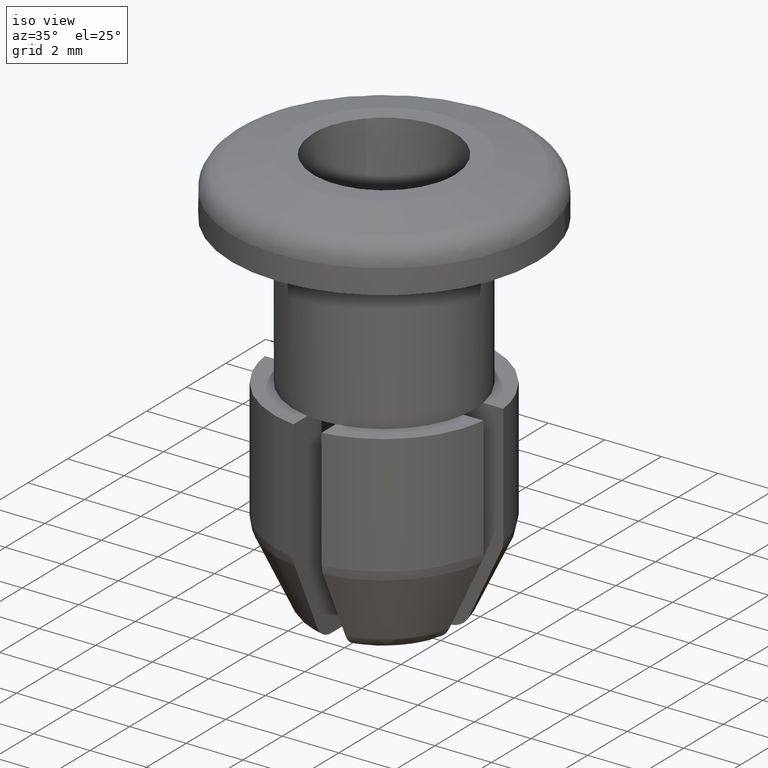
[diagram: clean part render]
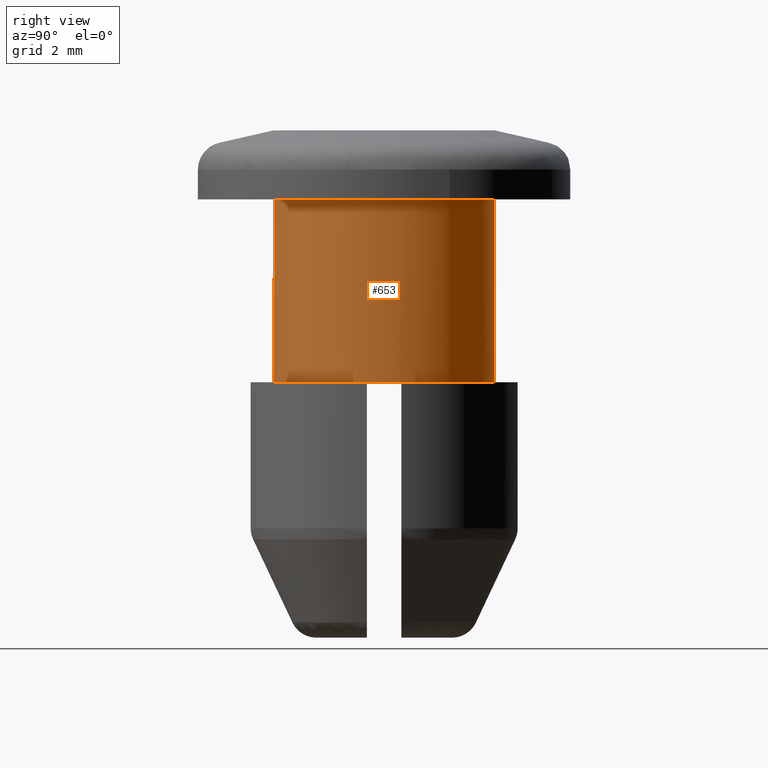
[diagram: tour spotlight — one face highlighted and labeled with its STEP entity id]
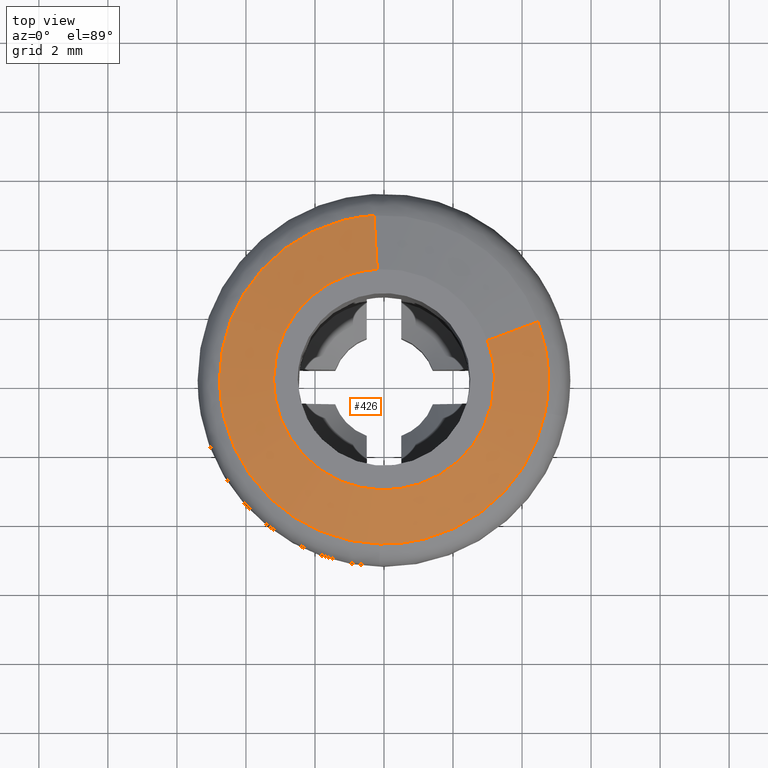
[diagram: tour spotlight — one face highlighted and labeled with its STEP entity id]
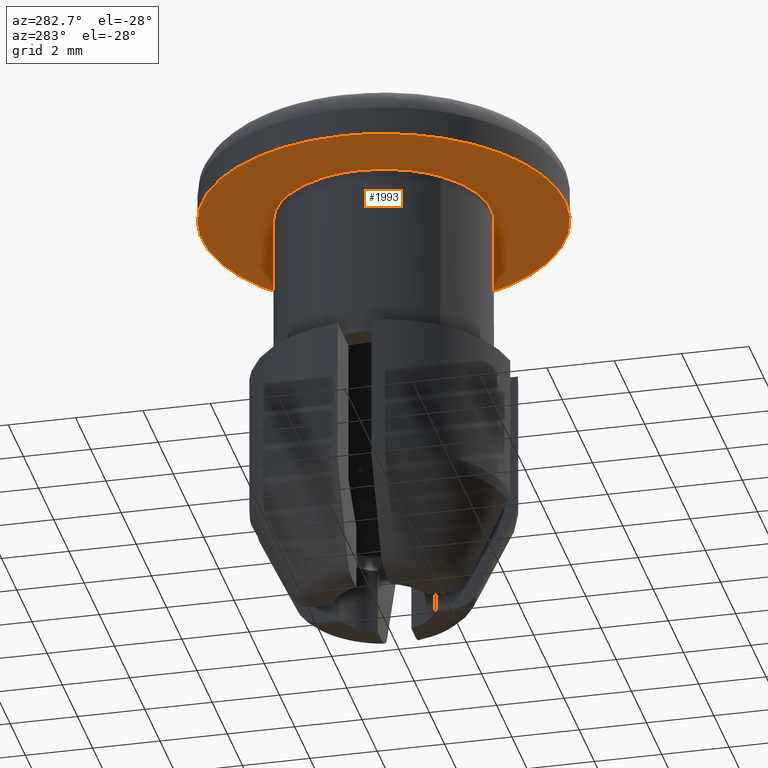
[diagram: tour spotlight — one face highlighted and labeled with its STEP entity id]
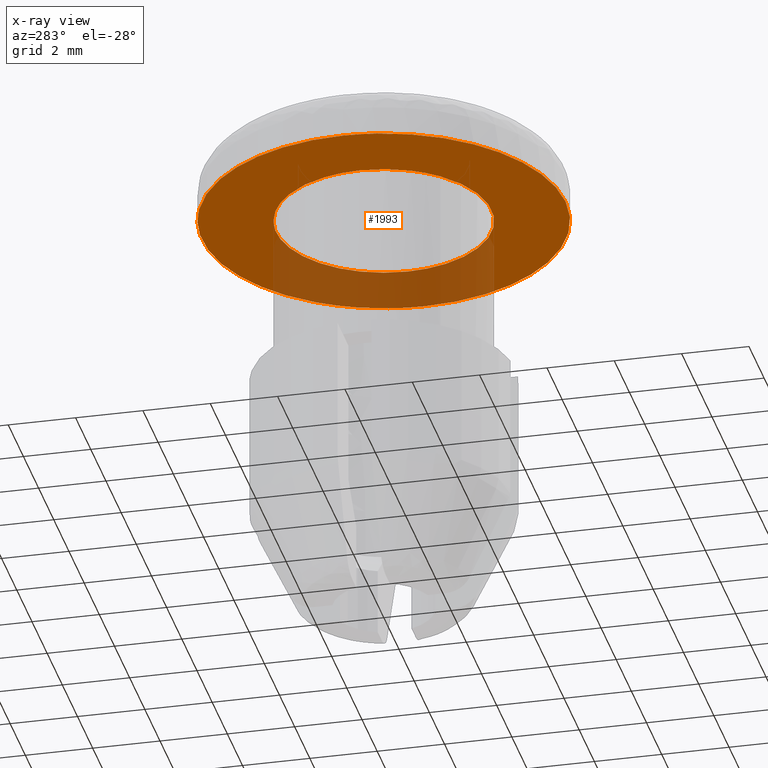
[diagram: x-ray of the same camera — body ghosted, this tour face saturated]
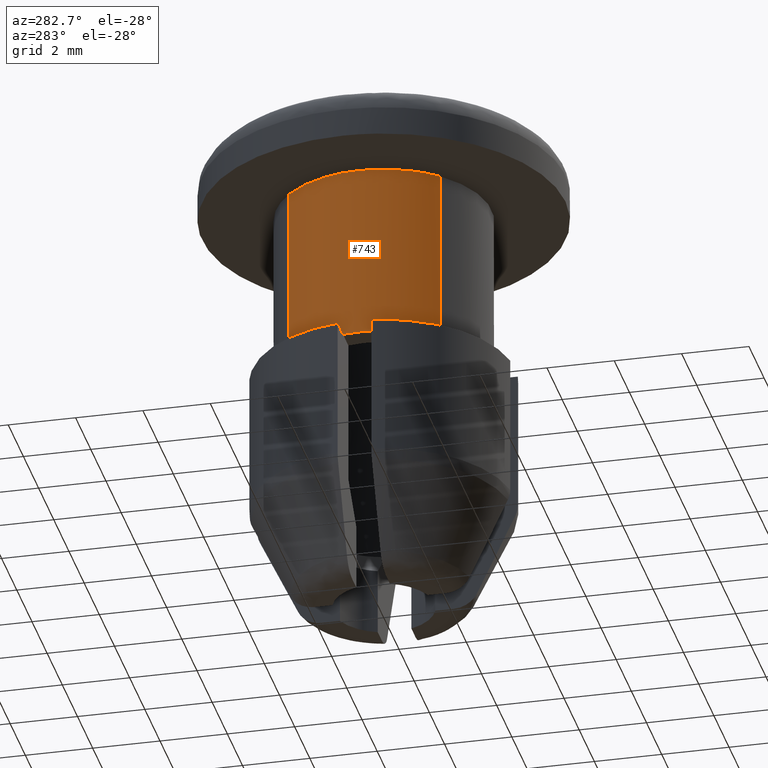
[diagram: tour spotlight — one face highlighted and labeled with its STEP entity id]
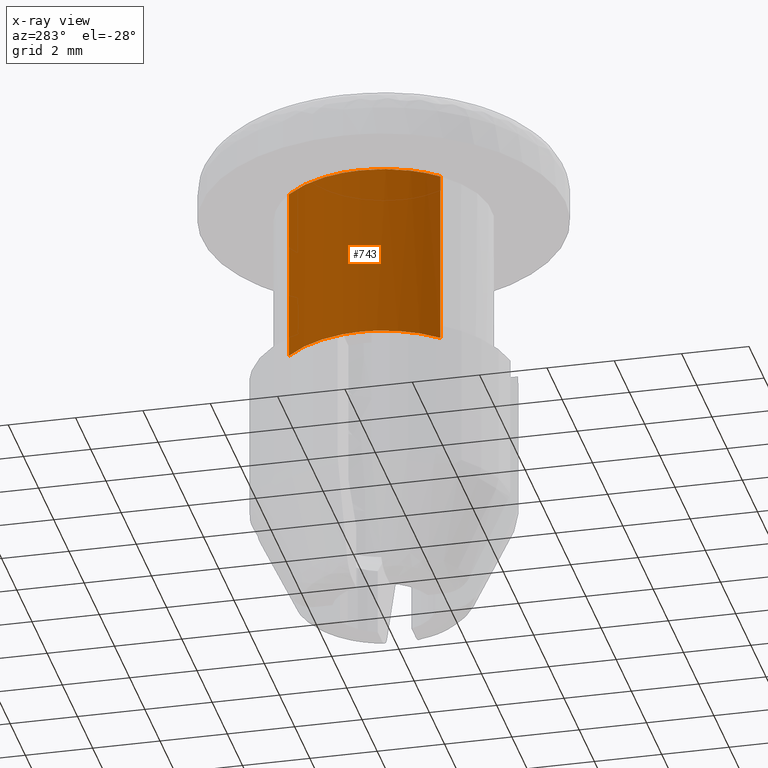
[diagram: x-ray of the same camera — body ghosted, this tour face saturated]
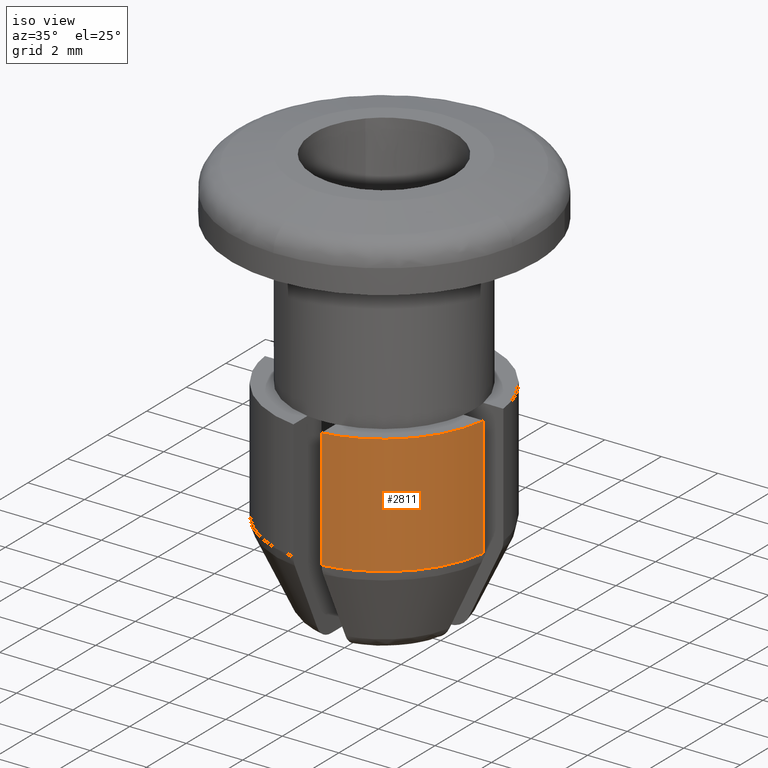
[diagram: tour spotlight — one face highlighted and labeled with its STEP entity id]
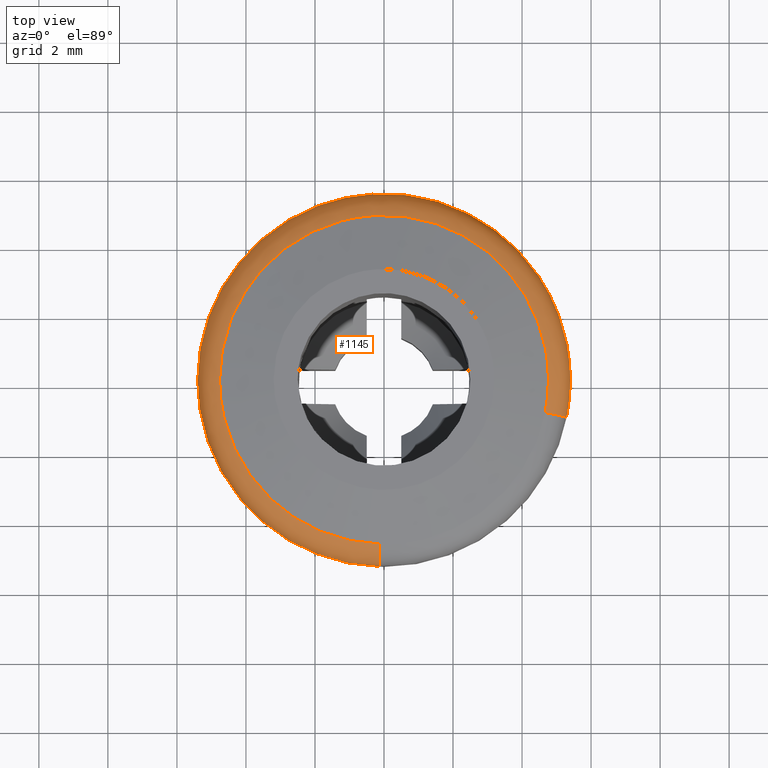
[diagram: tour spotlight — one face highlighted and labeled with its STEP entity id]
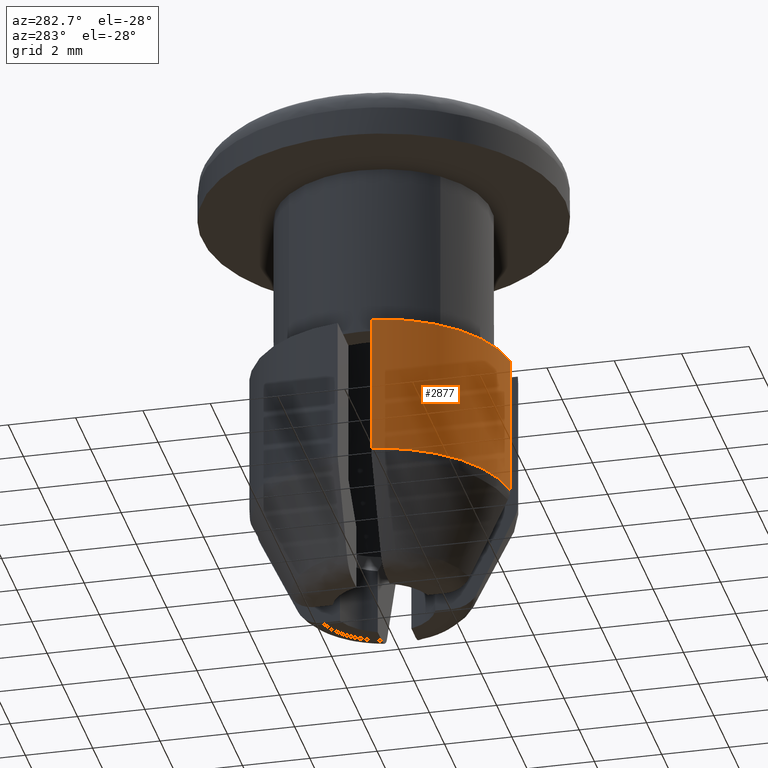
[diagram: tour spotlight — one face highlighted and labeled with its STEP entity id]
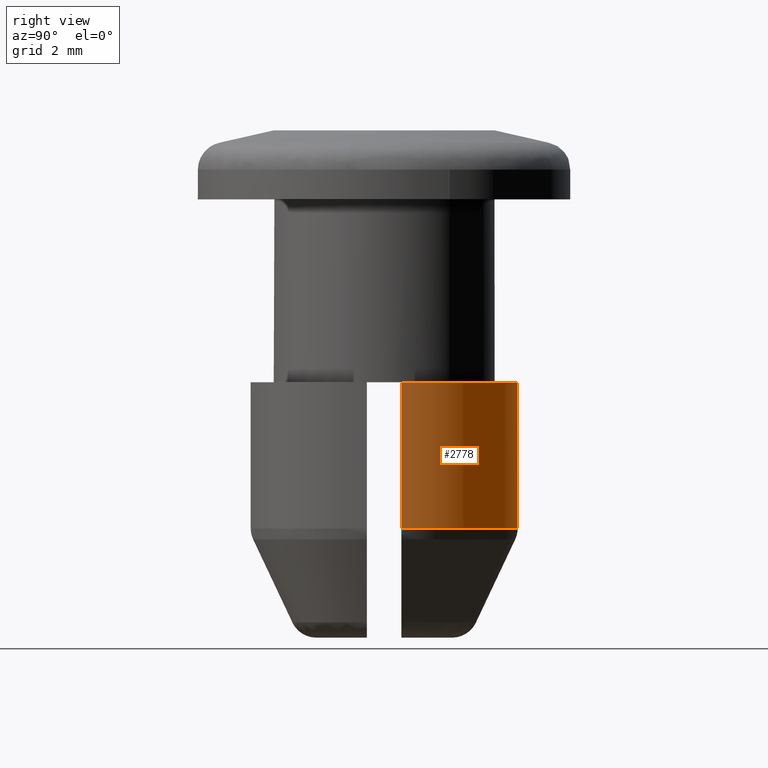
[diagram: tour spotlight — one face highlighted and labeled with its STEP entity id]
A machine part: a face-by-face anatomy tour. The part has 56 B-rep faces; the first image is the clean iso view, then the 8 largest visible faces are spotlighted one at a time (largest first), each with its STEP entity span.

Face 1 — right view, entity #653. In plain terms, the highlighted face is a freeform B-spline surface patch.
Definition (entity closure, byte-faithful):
#476=CARTESIAN_POINT('',(-2.321609333131511,-2.202301093019901,-7.432499999999858));
#477=CARTESIAN_POINT('',(-0.119308240111611,-4.523910426151413,-7.432499999999860));
#478=CARTESIAN_POINT('',(2.202301093019901,-2.321609333131511,-7.432499999999858));
#479=CARTESIAN_POINT('',(4.523910426151413,-0.119308240111611,-7.432499999999860));
#480=CARTESIAN_POINT('',(2.321609333131511,2.202301093019901,-7.432499999999858));
#481=CARTESIAN_POINT('',(0.119308240111611,4.523910426151413,-7.432499999999860));
#482=CARTESIAN_POINT('',(-2.202301093019901,2.321609333131511,-7.432499999999858));
#483=CARTESIAN_POINT('',(-2.321609333131511,-2.202301093019901,-1.864187500000003));
#484=CARTESIAN_POINT('',(-0.119308240111611,-4.523910426151413,-1.864187500000004));
#485=CARTESIAN_POINT('',(2.202301093019901,-2.321609333131511,-1.864187500000003));
#486=CARTESIAN_POINT('',(4.523910426151413,-0.119308240111611,-1.864187500000004));
#487=CARTESIAN_POINT('',(2.321609333131511,2.202301093019901,-1.864187500000003));
#488=CARTESIAN_POINT('',(0.119308240111611,4.523910426151413,-1.864187500000004));
#489=CARTESIAN_POINT('',(-2.202301093019901,2.321609333131511,-1.864187500000003));
#497=(BOUNDED_SURFACE()B_SPLINE_SURFACE(2,1,((#476,#483),(#477,#484),(#478,#485),(#479,#486),(#480,#487),(#481,#488),(#482,#489)),.UNSPECIFIED.,.F.,.F.,.U.)B_SPLINE_SURFACE_WITH_KNOTS((3,2,2,3),(2,2),(0.0,5.301933598375614,10.603867196751230,15.905800795126840),(0.0,5.568312499999855),.UNSPECIFIED.)GEOMETRIC_REPRESENTATION_ITEM()RATIONAL_B_SPLINE_SURFACE(((1.0,1.0),(0.707106781186548,0.707106781186548),(1.0,1.0),(0.707106781186548,0.707106781186548),(1.0,1.0),(0.707106781186548,0.707106781186548),(1.0,1.0)))REPRESENTATION_ITEM('')SURFACE());
#498=CARTESIAN_POINT('',(-2.321609420572284,-2.202301000842074,-2.0));
#499=VERTEX_POINT('',#498);
#500=CARTESIAN_POINT('',(3.200000000000000,0.0,-2.0));
#501=VERTEX_POINT('',#500);
#502=CARTESIAN_POINT('',(-2.321609420572284,-2.202301000842075,-1.999999999999999));
#503=CARTESIAN_POINT('',(-1.375182639998238,-3.200000000000000,-2.000000000000000));
#504=CARTESIAN_POINT('',(-1.972152E-031,-3.200000000000000,-2.0));
#505=CARTESIAN_POINT('',(3.200000000000000,-3.200000000000000,-2.000000000000000));
#506=CARTESIAN_POINT('',(3.200000000000000,0.0,-2.0));
#514=(BOUNDED_CURVE()B_SPLINE_CURVE(2,(#502,#503,#504,#505,#506),.UNSPECIFIED.,.F.,.U.)B_SPLINE_CURVE_WITH_KNOTS((3,2,3),(0.121021329653350,0.250000000000000,0.500000000000000),.UNSPECIFIED.)CURVE()GEOMETRIC_REPRESENTATION_ITEM()RATIONAL_B_SPLINE_CURVE((0.853701756873830,0.848892088335562,1.0,0.707106781186548,1.0))REPRESENTATION_ITEM(''));
#515=EDGE_CURVE('',#499,#501,#514,.T.);
#516=ORIENTED_EDGE('',*,*,#515,.F.);
#517=CARTESIAN_POINT('',(-2.321609362806782,-2.202301061736991,-7.299999999999860));
#518=VERTEX_POINT('',#517);
#519=CARTESIAN_POINT('',(-2.321609362806782,-2.202301061736991,-7.299999999999860));
#520=CARTESIAN_POINT('',(-2.321609420572284,-2.202301000842074,-2.0));
#521=QUASI_UNIFORM_CURVE('',1,(#519,#520),.UNSPECIFIED.,.F.,.U.);
#522=EDGE_CURVE('',#518,#499,#521,.T.);
#523=ORIENTED_EDGE('',*,*,#522,.F.);
#524=CARTESIAN_POINT('',(-0.500000000000000,-3.160696125855820,-7.299999999999860));
#525=VERTEX_POINT('',#524);
#526=CARTESIAN_POINT('',(-2.321609362806783,-2.202301061736991,-7.299999999999860));
#527=CARTESIAN_POINT('',(-1.573570166425779,-2.990864841278426,-7.299999999999861));
#528=CARTESIAN_POINT('',(-0.500000000000000,-3.160696125855822,-7.299999999999860));
#536=(BOUNDED_CURVE()B_SPLINE_CURVE(2,(#526,#527,#528),.UNSPECIFIED.,.F.,.U.)B_SPLINE_CURVE_WITH_KNOTS((3,3),(0.479718158413587,1.0),.UNSPECIFIED.)CURVE()GEOMETRIC_REPRESENTATION_ITEM()RATIONAL_B_SPLINE_CURVE((0.904610815485653,0.900577888452465,1.0))REPRESENTATION_ITEM(''));
#537=EDGE_CURVE('',#518,#525,#536,.T.);
#538=ORIENTED_EDGE('',*,*,#537,.T.);
#539=CARTESIAN_POINT('',(0.500000000000007,-3.160696125855820,-7.299999999999860));
#540=VERTEX_POINT('',#539);
#541=CARTESIAN_POINT('',(-0.500000000000000,-3.160696125855822,-7.299999999999860));
#542=CARTESIAN_POINT('',(5.529431E-015,-3.239792625501864,-7.299999999999860));
#543=CARTESIAN_POINT('',(0.500000000000008,-3.160696125855821,-7.299999999999860));
#551=(BOUNDED_CURVE()B_SPLINE_CURVE(2,(#541,#542,#543),.UNSPECIFIED.,.F.,.U.)CURVE()GEOMETRIC_REPRESENTATION_ITEM()QUASI_UNIFORM_CURVE()RATIONAL_B_SPLINE_CURVE((1.0,0.987717539329944,1.0))REPRESENTATION_ITEM(''));
#552=EDGE_CURVE('',#525,#540,#551,.T.);
#553=ORIENTED_EDGE('',*,*,#552,.T.);
#554=CARTESIAN_POINT('',(3.160696125855820,-0.500000000000000,-7.299999999999860));
#555=VERTEX_POINT('',#554);
#556=CARTESIAN_POINT('',(0.500000000000008,-3.160696125855821,-7.299999999999860));
#557=CARTESIAN_POINT('',(2.797282169277578,-2.797282169277573,-7.299999999999860));
#558=CARTESIAN_POINT('',(3.160696125855822,-0.500000000000000,-7.299999999999860));
#566=(BOUNDED_CURVE()B_SPLINE_CURVE(2,(#556,#557,#558),.UNSPECIFIED.,.F.,.U.)CURVE()GEOMETRIC_REPRESENTATION_ITEM()QUASI_UNIFORM_CURVE()RATIONAL_B_SPLINE_CURVE((1.0,0.808907204517493,1.0))REPRESENTATION_ITEM(''));
#567=EDGE_CURVE('',#540,#555,#566,.T.);
#568=ORIENTED_EDGE('',*,*,#567,.T.);
#569=CARTESIAN_POINT('',(3.160696125855820,0.500000000000007,-7.299999999999860));
#570=VERTEX_POINT('',#569);
#571=CARTESIAN_POINT('',(3.160696125855822,-0.500000000000000,-7.299999999999860));
#572=CARTESIAN_POINT('',(3.239792625501864,3.577867E-015,-7.299999999999860));
#573=CARTESIAN_POINT('',(3.160696125855821,0.500000000000006,-7.299999999999860));
#581=(BOUNDED_CURVE()B_SPLINE_CURVE(2,(#571,#572,#573),.UNSPECIFIED.,.F.,.U.)CURVE()GEOMETRIC_REPRESENTATION_ITEM()QUASI_UNIFORM_CURVE()RATIONAL_B_SPLINE_CURVE((1.0,0.987717539329944,1.0))REPRESENTATION_ITEM(''));
#582=EDGE_CURVE('',#555,#570,#581,.T.);
#583=ORIENTED_EDGE('',*,*,#582,.T.);
#584=CARTESIAN_POINT('',(0.500000000000007,3.160696125855820,-7.299999999999860));
#585=VERTEX_POINT('',#584);
#586=CARTESIAN_POINT('',(3.160696125855821,0.500000000000006,-7.299999999999860));
#587=CARTESIAN_POINT('',(2.797282169277575,2.797282169277573,-7.299999999999860));
#588=CARTESIAN_POINT('',(0.500000000000009,3.160696125855821,-7.299999999999860));
#596=(BOUNDED_CURVE()B_SPLINE_CURVE(2,(#586,#587,#588),.UNSPECIFIED.,.F.,.U.)CURVE()GEOMETRIC_REPRESENTATION_ITEM()QUASI_UNIFORM_CURVE()RATIONAL_B_SPLINE_CURVE((1.0,0.808907204517494,1.0))REPRESENTATION_ITEM(''));
#597=EDGE_CURVE('',#570,#585,#596,.T.);
#598=ORIENTED_EDGE('',*,*,#597,.T.);
#599=CARTESIAN_POINT('',(-0.500000000000000,3.160696125855820,-7.299999999999860));
#600=VERTEX_POINT('',#599);
#601=CARTESIAN_POINT('',(0.500000000000007,3.160696125855821,-7.299999999999860));
#602=CARTESIAN_POINT('',(4.011548E-015,3.239792625501864,-7.299999999999860));
#603=CARTESIAN_POINT('',(-0.500000000000000,3.160696125855822,-7.299999999999860));
#611=(BOUNDED_CURVE()B_SPLINE_CURVE(2,(#601,#602,#603),.UNSPECIFIED.,.F.,.U.)CURVE()GEOMETRIC_REPRESENTATION_ITEM()QUASI_UNIFORM_CURVE()RATIONAL_B_SPLINE_CURVE((1.0,0.987717539329944,1.0))REPRESENTATION_ITEM(''));
#612=EDGE_CURVE('',#585,#600,#611,.T.);
#613=ORIENTED_EDGE('',*,*,#612,.T.);
#614=CARTESIAN_POINT('',(-2.202301061736991,2.321609362806782,-7.299999999999860));
#615=VERTEX_POINT('',#614);
#616=CARTESIAN_POINT('',(-0.499999999999999,3.160696125855822,-7.299999999999860));
#617=CARTESIAN_POINT('',(-1.481422187070637,3.005442006511322,-7.299999999999861));
#618=CARTESIAN_POINT('',(-2.202301061736991,2.321609362806783,-7.299999999999860));
#626=(BOUNDED_CURVE()B_SPLINE_CURVE(2,(#616,#617,#618),.UNSPECIFIED.,.F.,.U.)B_SPLINE_CURVE_WITH_KNOTS((3,3),(0.0,0.479718158413588),.UNSPECIFIED.)CURVE()GEOMETRIC_REPRESENTATION_ITEM()RATIONAL_B_SPLINE_CURVE((1.0,0.908329316065027,0.904610815485653))REPRESENTATION_ITEM(''));
#627=EDGE_CURVE('',#600,#615,#626,.T.);
#628=ORIENTED_EDGE('',*,*,#627,.T.);
#629=CARTESIAN_POINT('',(-2.202301051181251,2.321609372820059,-2.0));
#630=VERTEX_POINT('',#629);
#631=CARTESIAN_POINT('',(-2.202301061736991,2.321609362806782,-7.299999999999860));
#632=CARTESIAN_POINT('',(-2.202301051181251,2.321609372820059,-2.0));
#633=QUASI_UNIFORM_CURVE('',1,(#631,#632),.UNSPECIFIED.,.F.,.U.);
#634=EDGE_CURVE('',#615,#630,#633,.T.);
#635=ORIENTED_EDGE('',*,*,#634,.T.);
#636=CARTESIAN_POINT('',(3.200000000000000,0.0,-2.0));
#637=CARTESIAN_POINT('',(3.200000000000000,3.200000000000000,-2.000000000000000));
#638=CARTESIAN_POINT('',(-1.972152E-031,3.200000000000000,-2.0));
#639=CARTESIAN_POINT('',(-1.276324111939398,3.199999999999999,-2.000000000000000));
#640=CARTESIAN_POINT('',(-2.202301051181251,2.321609372820059,-1.999999999999999));
#648=(BOUNDED_CURVE()B_SPLINE_CURVE(2,(#636,#637,#638,#639,#640),.UNSPECIFIED.,.F.,.U.)B_SPLINE_CURVE_WITH_KNOTS((3,2,3),(0.500000000000000,0.750000000000000,0.871021336197874),.UNSPECIFIED.)CURVE()GEOMETRIC_REPRESENTATION_ITEM()RATIONAL_B_SPLINE_CURVE((1.0,0.707106781186548,1.0,0.858214685183599,0.853701756385734))REPRESENTATION_ITEM(''));
#649=EDGE_CURVE('',#501,#630,#648,.T.);
#650=ORIENTED_EDGE('',*,*,#649,.F.);
#651=EDGE_LOOP('',(#516,#523,#538,#553,#568,#583,#598,#613,#628,#635,#650));
#652=FACE_OUTER_BOUND('',#651,.T.);
#653=ADVANCED_FACE('',(#652),#497,.T.);

Face 2 — top view, entity #426. In plain terms, the highlighted face is a freeform B-spline surface patch.
Definition (entity closure, byte-faithful):
#260=CARTESIAN_POINT('',(2.959032740801472,1.111420429586882,0.008905034525747));
#261=CARTESIAN_POINT('',(3.125991545656128,0.666911262058224,0.008905034525747));
#262=CARTESIAN_POINT('',(3.154979230988479,0.192966796287614,0.008905034525747));
#263=CARTESIAN_POINT('',(3.347946027276093,-2.962012434700864,0.008905034525747));
#264=CARTESIAN_POINT('',(0.192966796287614,-3.154979230988479,0.008905034525747));
#265=CARTESIAN_POINT('',(-2.962012434700864,-3.347946027276093,0.008905034525747));
#266=CARTESIAN_POINT('',(-3.154979230988479,-0.192966796287614,0.008905034525747));
#267=CARTESIAN_POINT('',(-3.347946027276093,2.962012434700864,0.008905034525747));
#268=CARTESIAN_POINT('',(-0.192966796287614,3.154979230988479,0.008905034525747));
#269=CARTESIAN_POINT('',(4.498270282504490,1.689562072376702,-0.365329041418765));
#270=CARTESIAN_POINT('',(4.752078163682831,1.013826940749401,-0.365329041418765));
#271=CARTESIAN_POINT('',(4.796144740470282,0.293344778948125,-0.365329041418765));
#272=CARTESIAN_POINT('',(5.089489519418407,-4.502799961522157,-0.365329041418765));
#273=CARTESIAN_POINT('',(0.293344778948125,-4.796144740470282,-0.365329041418765));
#274=CARTESIAN_POINT('',(-4.502799961522157,-5.089489519418407,-0.365329041418765));
#275=CARTESIAN_POINT('',(-4.796144740470282,-0.293344778948125,-0.365329041418765));
#276=CARTESIAN_POINT('',(-5.089489519418407,4.502799961522157,-0.365329041418765));
#277=CARTESIAN_POINT('',(-0.293344778948125,4.796144740470282,-0.365329041418765));
#285=(BOUNDED_SURFACE()B_SPLINE_SURFACE(2,1,((#260,#269),(#261,#270),(#262,#271),(#263,#272),(#264,#273),(#265,#274),(#266,#275),(#267,#276),(#268,#277)),.UNSPECIFIED.,.F.,.F.,.U.)B_SPLINE_SURFACE_WITH_KNOTS((3,2,2,2,3),(2,2),(0.0,1.592272468005885,9.553634808035312,17.514997148064740,25.476359488094172),(0.0,1.0),.UNSPECIFIED.)GEOMETRIC_REPRESENTATION_ITEM()RATIONAL_B_SPLINE_SURFACE(((0.906274169979695,0.906274169979695),(0.941421356237309,0.941421356237309),(1.0,1.0),(0.707106781186548,0.707106781186548),(1.0,1.0),(0.707106781186548,0.707106781186548),(1.0,1.0),(0.707106781186548,0.707106781186548),(1.0,1.0)))REPRESENTATION_ITEM('')SURFACE());
#286=CARTESIAN_POINT('',(4.460727903095101,1.675461056570736,-0.356201380946435));
#287=VERTEX_POINT('',#286);
#288=CARTESIAN_POINT('',(4.765004006035630,0.0,-0.356201380946417));
#289=VERTEX_POINT('',#288);
#290=CARTESIAN_POINT('',(4.460727903095101,1.675461056570736,-0.356201380946435));
#291=CARTESIAN_POINT('',(4.765004006035630,0.865359922134585,-0.356201380946417));
#292=CARTESIAN_POINT('',(4.765004006035630,0.0,-0.356201380946417));
#300=(BOUNDED_CURVE()B_SPLINE_CURVE(2,(#290,#291,#292),.UNSPECIFIED.,.F.,.U.)B_SPLINE_CURVE_WITH_KNOTS((3,3),(0.440284170898857,0.500000000000000),.UNSPECIFIED.)CURVE()GEOMETRIC_REPRESENTATION_ITEM()RATIONAL_B_SPLINE_CURVE((0.893499554635702,0.930038554401809,1.0))REPRESENTATION_ITEM(''));
#301=EDGE_CURVE('',#287,#289,#300,.T.);
#302=ORIENTED_EDGE('',*,*,#301,.F.);
#303=CARTESIAN_POINT('',(2.995659452077921,1.125177518080948,-6.613125E-013));
#304=VERTEX_POINT('',#303);
#305=CARTESIAN_POINT('',(2.995659452077921,1.125177518080948,-6.613125E-013));
#306=CARTESIAN_POINT('',(4.460727903095101,1.675461056570736,-0.356201380946435));
#307=QUASI_UNIFORM_CURVE('',1,(#305,#306),.UNSPECIFIED.,.F.,.U.);
#308=EDGE_CURVE('',#304,#287,#307,.T.);
#309=ORIENTED_EDGE('',*,*,#308,.F.);
#310=CARTESIAN_POINT('',(3.200000000000000,0.0,0.0));
#311=VERTEX_POINT('',#310);
#312=CARTESIAN_POINT('',(2.995659452077921,1.125177518080948,-6.613125E-013));
#313=CARTESIAN_POINT('',(3.200000000000000,0.581143635443312,0.0));
#314=CARTESIAN_POINT('',(3.200000000000000,0.0,0.0));
#322=(BOUNDED_CURVE()B_SPLINE_CURVE(2,(#312,#313,#314),.UNSPECIFIED.,.F.,.U.)B_SPLINE_CURVE_WITH_KNOTS((3,3),(0.440284170896073,0.500000000000000),.UNSPECIFIED.)CURVE()GEOMETRIC_REPRESENTATION_ITEM()RATIONAL_B_SPLINE_CURVE((0.893499554632295,0.930038554398547,1.0))REPRESENTATION_ITEM(''));
#323=EDGE_CURVE('',#304,#311,#322,.T.);
#324=ORIENTED_EDGE('',*,*,#323,.T.);
#325=CARTESIAN_POINT('',(-3.200000000000000,0.0,0.0));
#326=VERTEX_POINT('',#325);
#327=CARTESIAN_POINT('',(3.200000000000000,0.0,0.0));
#328=CARTESIAN_POINT('',(3.200000000000000,-3.200000000000000,0.0));
#329=CARTESIAN_POINT('',(0.0,-3.200000000000000,0.0));
#330=CARTESIAN_POINT('',(-3.200000000000000,-3.200000000000000,0.0));
#331=CARTESIAN_POINT('',(-3.200000000000000,0.0,0.0));
#339=(BOUNDED_CURVE()B_SPLINE_CURVE(2,(#327,#328,#329,#330,#331),.UNSPECIFIED.,.F.,.U.)B_SPLINE_CURVE_WITH_KNOTS((3,2,3),(0.500000000000000,0.750000000000000,1.0),.UNSPECIFIED.)CURVE()GEOMETRIC_REPRESENTATION_ITEM()RATIONAL_B_SPLINE_CURVE((1.0,0.707106781186548,1.0,0.707106781186548,1.0))REPRESENTATION_ITEM(''));
#340=EDGE_CURVE('',#311,#326,#339,.T.);
#341=ORIENTED_EDGE('',*,*,#340,.T.);
#342=CARTESIAN_POINT('',(-0.195355326531273,3.194031354951814,-6.923082E-013));
#343=VERTEX_POINT('',#342);
#344=CARTESIAN_POINT('',(-3.200000000000000,0.0,0.0));
#345=CARTESIAN_POINT('',(-3.199999999999999,3.010259414061313,0.0));
#346=CARTESIAN_POINT('',(-0.195355326531273,3.194031354951814,-6.923082E-013));
#354=(BOUNDED_CURVE()B_SPLINE_CURVE(2,(#344,#345,#346),.UNSPECIFIED.,.F.,.U.)B_SPLINE_CURVE_WITH_KNOTS((3,3),(0.0,0.239332962239857),.UNSPECIFIED.)CURVE()GEOMETRIC_REPRESENTATION_ITEM()RATIONAL_B_SPLINE_CURVE((1.0,0.719603993285640,0.976072041668676))REPRESENTATION_ITEM(''));
#355=EDGE_CURVE('',#326,#343,#354,.T.);
#356=ORIENTED_EDGE('',*,*,#355,.T.);
#357=CARTESIAN_POINT('',(-0.290896535476083,4.756116313046521,-0.356201380947459));
#358=VERTEX_POINT('',#357);
#359=CARTESIAN_POINT('',(-0.195355326531273,3.194031354951814,-6.923082E-013));
#360=CARTESIAN_POINT('',(-0.290896535476083,4.756116313046521,-0.356201380947459));
#361=QUASI_UNIFORM_CURVE('',1,(#359,#360),.UNSPECIFIED.,.F.,.U.);
#362=EDGE_CURVE('',#343,#358,#361,.T.);
#363=ORIENTED_EDGE('',*,*,#362,.T.);
#364=CARTESIAN_POINT('',(-4.765004006035630,0.0,-0.356201380946417));
#365=VERTEX_POINT('',#364);
#366=CARTESIAN_POINT('',(-4.765004006035630,0.0,-0.356201380946417));
#367=CARTESIAN_POINT('',(-4.765004006035629,4.482468177251783,-0.356201380946417));
#368=CARTESIAN_POINT('',(-0.290896535476083,4.756116313046521,-0.356201380947459));
#376=(BOUNDED_CURVE()B_SPLINE_CURVE(2,(#366,#367,#368),.UNSPECIFIED.,.F.,.U.)B_SPLINE_CURVE_WITH_KNOTS((3,3),(0.0,0.239332962239822),.UNSPECIFIED.)CURVE()GEOMETRIC_REPRESENTATION_ITEM()RATIONAL_B_SPLINE_CURVE((1.0,0.719603993285681,0.976072041668601))REPRESENTATION_ITEM(''));
#377=EDGE_CURVE('',#365,#358,#376,.T.);
#378=ORIENTED_EDGE('',*,*,#377,.F.);
#379=CARTESIAN_POINT('',(-0.122093203293687,-4.763439558820435,-0.356201381019195));
#380=VERTEX_POINT('',#379);
#381=CARTESIAN_POINT('',(-0.122093203293687,-4.763439558820435,-0.356201381019195));
#382=CARTESIAN_POINT('',(-4.765004006035630,-4.644435665237780,-0.356201380946417));
#383=CARTESIAN_POINT('',(-4.765004006035630,0.0,-0.356201380946417));
#391=(BOUNDED_CURVE()B_SPLINE_CURVE(2,(#381,#382,#383),.UNSPECIFIED.,.F.,.U.)B_SPLINE_CURVE_WITH_KNOTS((3,3),(0.754506356914855,1.0),.UNSPECIFIED.)CURVE()GEOMETRIC_REPRESENTATION_ITEM()RATIONAL_B_SPLINE_CURVE((0.989631280355637,0.712386306714204,1.0))REPRESENTATION_ITEM(''));
#392=EDGE_CURVE('',#380,#365,#391,.T.);
#393=ORIENTED_EDGE('',*,*,#392,.F.);
#394=CARTESIAN_POINT('',(4.669013250326508,-0.951618857308044,-0.356201381029874));
#395=VERTEX_POINT('',#394);
#396=CARTESIAN_POINT('',(4.669013250326508,-0.951618857308044,-0.356201381029874));
#397=CARTESIAN_POINT('',(3.891784952790702,-4.765004006035629,-0.356201380946417));
#398=CARTESIAN_POINT('',(0.0,-4.765004006035630,-0.356201380946417));
#399=CARTESIAN_POINT('',(-0.061056624727273,-4.765004006035631,-0.356201380946417));
#400=CARTESIAN_POINT('',(-0.122093203293687,-4.763439558820435,-0.356201381019195));
#408=(BOUNDED_CURVE()B_SPLINE_CURVE(2,(#396,#397,#398,#399,#400),.UNSPECIFIED.,.F.,.U.)B_SPLINE_CURVE_WITH_KNOTS((3,2,3),(0.534232961493298,0.750000000000000,0.754506356914855),.UNSPECIFIED.)CURVE()GEOMETRIC_REPRESENTATION_ITEM()RATIONAL_B_SPLINE_CURVE((0.930770871023416,0.747213190311703,1.0,0.994720474472343,0.989631280355636))REPRESENTATION_ITEM(''));
#409=EDGE_CURVE('',#395,#380,#408,.T.);
#410=ORIENTED_EDGE('',*,*,#409,.F.);
#411=CARTESIAN_POINT('',(4.765004006035630,0.0,-0.356201380946417));
#412=CARTESIAN_POINT('',(4.765004006035630,-0.480650770932359,-0.356201380946417));
#413=CARTESIAN_POINT('',(4.669013250326508,-0.951618857308044,-0.356201381029874));
#421=(BOUNDED_CURVE()B_SPLINE_CURVE(2,(#411,#412,#413),.UNSPECIFIED.,.F.,.U.)B_SPLINE_CURVE_WITH_KNOTS((3,3),(0.500000000000000,0.534232961493297),.UNSPECIFIED.)CURVE()GEOMETRIC_REPRESENTATION_ITEM()RATIONAL_B_SPLINE_CURVE((1.0,0.959893590874845,0.930770871023417))REPRESENTATION_ITEM(''));
#422=EDGE_CURVE('',#289,#395,#421,.T.);
#423=ORIENTED_EDGE('',*,*,#422,.F.);
#424=EDGE_LOOP('',(#302,#309,#324,#341,#356,#363,#378,#393,#410,#423));
#425=FACE_OUTER_BOUND('',#424,.T.);
#426=ADVANCED_FACE('',(#425),#285,.T.);

Face 3 — auxiliary view, entity #1993. An x-ray twin of the same camera follows (body ghosted, this face saturated) — the face is partly hidden behind the body. In plain terms, the highlighted face is a freeform B-spline surface patch.
Definition (entity closure, byte-faithful):
#70=CARTESIAN_POINT('',(5.055175638594127,1.898736227853585,-2.000000000000012));
#71=VERTEX_POINT('',#70);
#72=CARTESIAN_POINT('',(5.400000000000000,0.0,-2.0));
#73=VERTEX_POINT('',#72);
#74=CARTESIAN_POINT('',(5.055175638594127,1.898736227853585,-2.000000000000011));
#75=CARTESIAN_POINT('',(5.400000000000000,0.980678964642470,-2.000000000000000));
#76=CARTESIAN_POINT('',(5.400000000000000,0.0,-2.0));
#84=(BOUNDED_CURVE()B_SPLINE_CURVE(2,(#74,#75,#76),.UNSPECIFIED.,.F.,.U.)B_SPLINE_CURVE_WITH_KNOTS((3,3),(0.440284223007188,0.500000000000000),.UNSPECIFIED.)CURVE()GEOMETRIC_REPRESENTATION_ITEM()RATIONAL_B_SPLINE_CURVE((0.893499618403955,0.930038615450516,1.0))REPRESENTATION_ITEM(''));
#85=EDGE_CURVE('',#71,#73,#84,.T.);
#171=CARTESIAN_POINT('',(-0.329659433774561,5.389928075375053,-1.999999999999957));
#172=VERTEX_POINT('',#171);
#178=CARTESIAN_POINT('',(-5.400000000000000,0.0,-2.0));
#179=VERTEX_POINT('',#178);
#180=CARTESIAN_POINT('',(-5.400000000000000,0.0,-2.0));
#181=CARTESIAN_POINT('',(-5.400000000000000,5.079815291544232,-2.000000000000000));
#182=CARTESIAN_POINT('',(-0.329659433774561,5.389928075375053,-1.999999999999957));
#190=(BOUNDED_CURVE()B_SPLINE_CURVE(2,(#180,#181,#182),.UNSPECIFIED.,.F.,.U.)B_SPLINE_CURVE_WITH_KNOTS((3,3),(0.0,0.239333048027164),.UNSPECIFIED.)CURVE()GEOMETRIC_REPRESENTATION_ITEM()RATIONAL_B_SPLINE_CURVE((1.0,0.719603892779557,0.976072225527275))REPRESENTATION_ITEM(''));
#191=EDGE_CURVE('',#179,#172,#190,.T.);
#193=CARTESIAN_POINT('',(5.400000000000000,0.0,-2.0));
#194=CARTESIAN_POINT('',(5.400000000000000,-5.400000000000000,-2.000000000000000));
#195=CARTESIAN_POINT('',(0.0,-5.400000000000000,-2.0));
#196=CARTESIAN_POINT('',(-5.400000000000000,-5.400000000000000,-2.000000000000000));
#197=CARTESIAN_POINT('',(-5.400000000000000,0.0,-2.0));
#205=(BOUNDED_CURVE()B_SPLINE_CURVE(2,(#193,#194,#195,#196,#197),.UNSPECIFIED.,.F.,.U.)B_SPLINE_CURVE_WITH_KNOTS((3,2,3),(0.500000000000000,0.750000000000000,1.0),.UNSPECIFIED.)CURVE()GEOMETRIC_REPRESENTATION_ITEM()RATIONAL_B_SPLINE_CURVE((1.0,0.707106781186548,1.0,0.707106781186548,1.0))REPRESENTATION_ITEM(''));
#206=EDGE_CURVE('',#73,#179,#205,.T.);
#225=CARTESIAN_POINT('',(-0.329659433774561,5.389928075375053,-1.999999999999957));
#226=CARTESIAN_POINT('',(-0.164983578198770,5.400000000000000,-2.000000000000000));
#227=CARTESIAN_POINT('',(0.0,5.400000000000000,-2.0));
#228=CARTESIAN_POINT('',(3.740093134785669,5.400000000000001,-2.000000000000000));
#229=CARTESIAN_POINT('',(5.055175638594126,1.898736227853585,-2.000000000000012));
#237=(BOUNDED_CURVE()B_SPLINE_CURVE(2,(#225,#226,#227,#228,#229),.UNSPECIFIED.,.F.,.U.)B_SPLINE_CURVE_WITH_KNOTS((3,2,3),(0.239333048027164,0.250000000000000,0.440284223007188),.UNSPECIFIED.)CURVE()GEOMETRIC_REPRESENTATION_ITEM()RATIONAL_B_SPLINE_CURVE((0.976072225527275,0.987502888406990,1.0,0.777068165736032,0.893499618403954))REPRESENTATION_ITEM(''));
#238=EDGE_CURVE('',#172,#71,#237,.T.);
#498=CARTESIAN_POINT('',(-2.321609420572284,-2.202301000842074,-2.0));
#499=VERTEX_POINT('',#498);
#500=CARTESIAN_POINT('',(3.200000000000000,0.0,-2.0));
#501=VERTEX_POINT('',#500);
#502=CARTESIAN_POINT('',(-2.321609420572284,-2.202301000842075,-1.999999999999999));
#503=CARTESIAN_POINT('',(-1.375182639998238,-3.200000000000000,-2.000000000000000));
#504=CARTESIAN_POINT('',(-1.972152E-031,-3.200000000000000,-2.0));
#505=CARTESIAN_POINT('',(3.200000000000000,-3.200000000000000,-2.000000000000000));
#506=CARTESIAN_POINT('',(3.200000000000000,0.0,-2.0));
#514=(BOUNDED_CURVE()B_SPLINE_CURVE(2,(#502,#503,#504,#505,#506),.UNSPECIFIED.,.F.,.U.)B_SPLINE_CURVE_WITH_KNOTS((3,2,3),(0.121021329653350,0.250000000000000,0.500000000000000),.UNSPECIFIED.)CURVE()GEOMETRIC_REPRESENTATION_ITEM()RATIONAL_B_SPLINE_CURVE((0.853701756873830,0.848892088335562,1.0,0.707106781186548,1.0))REPRESENTATION_ITEM(''));
#515=EDGE_CURVE('',#499,#501,#514,.T.);
#629=CARTESIAN_POINT('',(-2.202301051181251,2.321609372820059,-2.0));
#630=VERTEX_POINT('',#629);
#636=CARTESIAN_POINT('',(3.200000000000000,0.0,-2.0));
#637=CARTESIAN_POINT('',(3.200000000000000,3.200000000000000,-2.000000000000000));
#638=CARTESIAN_POINT('',(-1.972152E-031,3.200000000000000,-2.0));
#639=CARTESIAN_POINT('',(-1.276324111939398,3.199999999999999,-2.000000000000000));
#640=CARTESIAN_POINT('',(-2.202301051181251,2.321609372820059,-1.999999999999999));
#648=(BOUNDED_CURVE()B_SPLINE_CURVE(2,(#636,#637,#638,#639,#640),.UNSPECIFIED.,.F.,.U.)B_SPLINE_CURVE_WITH_KNOTS((3,2,3),(0.500000000000000,0.750000000000000,0.871021336197874),.UNSPECIFIED.)CURVE()GEOMETRIC_REPRESENTATION_ITEM()RATIONAL_B_SPLINE_CURVE((1.0,0.707106781186548,1.0,0.858214685183599,0.853701756385734))REPRESENTATION_ITEM(''));
#649=EDGE_CURVE('',#501,#630,#648,.T.);
#668=CARTESIAN_POINT('',(-3.200000000000000,0.0,-2.0));
#669=VERTEX_POINT('',#668);
#670=CARTESIAN_POINT('',(-3.200000000000000,0.0,-2.0));
#671=CARTESIAN_POINT('',(-3.200000000000000,-1.276324031516234,-2.000000000000000));
#672=CARTESIAN_POINT('',(-2.321609420572284,-2.202301000842075,-1.999999999999999));
#680=(BOUNDED_CURVE()B_SPLINE_CURVE(2,(#670,#671,#672),.UNSPECIFIED.,.F.,.U.)B_SPLINE_CURVE_WITH_KNOTS((3,3),(0.0,0.121021329653350),.UNSPECIFIED.)CURVE()GEOMETRIC_REPRESENTATION_ITEM()RATIONAL_B_SPLINE_CURVE((1.0,0.858214692850985,0.853701756873830))REPRESENTATION_ITEM(''));
#681=EDGE_CURVE('',#669,#499,#680,.T.);
#683=CARTESIAN_POINT('',(-2.202301051181251,2.321609372820058,-1.999999999999999));
#684=CARTESIAN_POINT('',(-3.200000000000000,1.375182557798939,-2.000000000000000));
#685=CARTESIAN_POINT('',(-3.200000000000000,0.0,-2.0));
#693=(BOUNDED_CURVE()B_SPLINE_CURVE(2,(#683,#684,#685),.UNSPECIFIED.,.F.,.U.)B_SPLINE_CURVE_WITH_KNOTS((3,3),(0.871021336197875,1.0),.UNSPECIFIED.)CURVE()GEOMETRIC_REPRESENTATION_ITEM()RATIONAL_B_SPLINE_CURVE((0.853701756385734,0.848892096002950,1.0))REPRESENTATION_ITEM(''));
#694=EDGE_CURVE('',#630,#669,#693,.T.);
#1976=CARTESIAN_POINT('',(-5.939460080450179,-5.939413083693621,-2.0));
#1977=CARTESIAN_POINT('',(5.939460273569227,-5.939413083693621,-2.0));
#1978=CARTESIAN_POINT('',(-5.939460080450179,5.938472400805590,-2.0));
#1979=CARTESIAN_POINT('',(5.939460273569227,5.938472400805590,-2.0));
#1980=B_SPLINE_SURFACE_WITH_KNOTS('',1,1,((#1976,#1978),(#1977,#1979)),.UNSPECIFIED.,.F.,.F.,.U.,(2,2),(2,2),(0.0,11.878920354019410),(0.0,11.877885484499210),.UNSPECIFIED.);
#1981=ORIENTED_EDGE('',*,*,#191,.T.);
#1982=ORIENTED_EDGE('',*,*,#238,.T.);
#1983=ORIENTED_EDGE('',*,*,#85,.T.);
#1984=ORIENTED_EDGE('',*,*,#206,.T.);
#1985=EDGE_LOOP('',(#1981,#1982,#1983,#1984));
#1986=FACE_OUTER_BOUND('',#1985,.T.);
#1987=ORIENTED_EDGE('',*,*,#649,.T.);
#1988=ORIENTED_EDGE('',*,*,#694,.T.);
#1989=ORIENTED_EDGE('',*,*,#681,.T.);
#1990=ORIENTED_EDGE('',*,*,#515,.T.);
#1991=EDGE_LOOP('',(#1987,#1988,#1989,#1990));
#1992=FACE_BOUND('',#1991,.T.);
#1993=ADVANCED_FACE('',(#1986,#1992),#1980,.F.);

Face 4 — auxiliary view, entity #743. An x-ray twin of the same camera follows (body ghosted, this face saturated) — the face is partly hidden behind the body. In plain terms, the highlighted face is a freeform B-spline surface patch.
Definition (entity closure, byte-faithful):
#498=CARTESIAN_POINT('',(-2.321609420572284,-2.202301000842074,-2.0));
#499=VERTEX_POINT('',#498);
#517=CARTESIAN_POINT('',(-2.321609362806782,-2.202301061736991,-7.299999999999860));
#518=VERTEX_POINT('',#517);
#519=CARTESIAN_POINT('',(-2.321609362806782,-2.202301061736991,-7.299999999999860));
#520=CARTESIAN_POINT('',(-2.321609420572284,-2.202301000842074,-2.0));
#521=QUASI_UNIFORM_CURVE('',1,(#519,#520),.UNSPECIFIED.,.F.,.U.);
#522=EDGE_CURVE('',#518,#499,#521,.T.);
#614=CARTESIAN_POINT('',(-2.202301061736991,2.321609362806782,-7.299999999999860));
#615=VERTEX_POINT('',#614);
#629=CARTESIAN_POINT('',(-2.202301051181251,2.321609372820059,-2.0));
#630=VERTEX_POINT('',#629);
#631=CARTESIAN_POINT('',(-2.202301061736991,2.321609362806782,-7.299999999999860));
#632=CARTESIAN_POINT('',(-2.202301051181251,2.321609372820059,-2.0));
#633=QUASI_UNIFORM_CURVE('',1,(#631,#632),.UNSPECIFIED.,.F.,.U.);
#634=EDGE_CURVE('',#615,#630,#633,.T.);
#654=CARTESIAN_POINT('',(-2.202301093019901,2.321609333131511,-7.432499999999858));
#655=CARTESIAN_POINT('',(-4.523910426151413,0.119308240111611,-7.432499999999860));
#656=CARTESIAN_POINT('',(-2.321609333131511,-2.202301093019901,-7.432499999999858));
#657=CARTESIAN_POINT('',(-2.202301093019901,2.321609333131511,-1.864187500000003));
#658=CARTESIAN_POINT('',(-4.523910426151413,0.119308240111611,-1.864187500000004));
#659=CARTESIAN_POINT('',(-2.321609333131511,-2.202301093019901,-1.864187500000003));
#667=(BOUNDED_SURFACE()B_SPLINE_SURFACE(2,1,((#654,#657),(#655,#658),(#656,#659)),.UNSPECIFIED.,.F.,.F.,.U.)B_SPLINE_SURFACE_WITH_KNOTS((3,3),(2,2),(0.0,5.301933598375614),(0.0,5.568312499999855),.UNSPECIFIED.)GEOMETRIC_REPRESENTATION_ITEM()RATIONAL_B_SPLINE_SURFACE(((1.0,1.0),(0.707106781186548,0.707106781186548),(1.0,1.0)))REPRESENTATION_ITEM('')SURFACE());
#668=CARTESIAN_POINT('',(-3.200000000000000,0.0,-2.0));
#669=VERTEX_POINT('',#668);
#670=CARTESIAN_POINT('',(-3.200000000000000,0.0,-2.0));
#671=CARTESIAN_POINT('',(-3.200000000000000,-1.276324031516234,-2.000000000000000));
#672=CARTESIAN_POINT('',(-2.321609420572284,-2.202301000842075,-1.999999999999999));
#680=(BOUNDED_CURVE()B_SPLINE_CURVE(2,(#670,#671,#672),.UNSPECIFIED.,.F.,.U.)B_SPLINE_CURVE_WITH_KNOTS((3,3),(0.0,0.121021329653350),.UNSPECIFIED.)CURVE()GEOMETRIC_REPRESENTATION_ITEM()RATIONAL_B_SPLINE_CURVE((1.0,0.858214692850985,0.853701756873830))REPRESENTATION_ITEM(''));
#681=EDGE_CURVE('',#669,#499,#680,.T.);
#682=ORIENTED_EDGE('',*,*,#681,.F.);
#683=CARTESIAN_POINT('',(-2.202301051181251,2.321609372820058,-1.999999999999999));
#684=CARTESIAN_POINT('',(-3.200000000000000,1.375182557798939,-2.000000000000000));
#685=CARTESIAN_POINT('',(-3.200000000000000,0.0,-2.0));
#693=(BOUNDED_CURVE()B_SPLINE_CURVE(2,(#683,#684,#685),.UNSPECIFIED.,.F.,.U.)B_SPLINE_CURVE_WITH_KNOTS((3,3),(0.871021336197875,1.0),.UNSPECIFIED.)CURVE()GEOMETRIC_REPRESENTATION_ITEM()RATIONAL_B_SPLINE_CURVE((0.853701756385734,0.848892096002950,1.0))REPRESENTATION_ITEM(''));
#694=EDGE_CURVE('',#630,#669,#693,.T.);
#695=ORIENTED_EDGE('',*,*,#694,.F.);
#696=ORIENTED_EDGE('',*,*,#634,.F.);
#697=CARTESIAN_POINT('',(-3.160696125855820,0.500000000000007,-7.299999999999860));
#698=VERTEX_POINT('',#697);
#699=CARTESIAN_POINT('',(-2.202301061736991,2.321609362806782,-7.299999999999860));
#700=CARTESIAN_POINT('',(-2.990864841278423,1.573570166425782,-7.299999999999860));
#701=CARTESIAN_POINT('',(-3.160696125855820,0.500000000000009,-7.299999999999860));
#709=(BOUNDED_CURVE()B_SPLINE_CURVE(2,(#699,#700,#701),.UNSPECIFIED.,.F.,.U.)B_SPLINE_CURVE_WITH_KNOTS((3,3),(0.479718158413588,1.0),.UNSPECIFIED.)CURVE()GEOMETRIC_REPRESENTATION_ITEM()RATIONAL_B_SPLINE_CURVE((0.904610815485653,0.900577888452466,1.0))REPRESENTATION_ITEM(''));
#710=EDGE_CURVE('',#615,#698,#709,.T.);
#711=ORIENTED_EDGE('',*,*,#710,.T.);
#712=CARTESIAN_POINT('',(-3.160696125855820,-0.500000000000000,-7.299999999999860));
#713=VERTEX_POINT('',#712);
#714=CARTESIAN_POINT('',(-3.160696125855820,0.500000000000009,-7.299999999999860));
#715=CARTESIAN_POINT('',(-3.239792625501865,4.662069E-015,-7.299999999999860));
#716=CARTESIAN_POINT('',(-3.160696125855822,-0.499999999999999,-7.299999999999860));
#724=(BOUNDED_CURVE()B_SPLINE_CURVE(2,(#714,#715,#716),.UNSPECIFIED.,.F.,.U.)CURVE()GEOMETRIC_REPRESENTATION_ITEM()QUASI_UNIFORM_CURVE()RATIONAL_B_SPLINE_CURVE((1.0,0.987717539329944,1.0))REPRESENTATION_ITEM(''));
#725=EDGE_CURVE('',#698,#713,#724,.T.);
#726=ORIENTED_EDGE('',*,*,#725,.T.);
#727=CARTESIAN_POINT('',(-3.160696125855822,-0.500000000000000,-7.299999999999860));
#728=CARTESIAN_POINT('',(-3.005442006511322,-1.481422187070637,-7.299999999999861));
#729=CARTESIAN_POINT('',(-2.321609362806783,-2.202301061736991,-7.299999999999860));
#737=(BOUNDED_CURVE()B_SPLINE_CURVE(2,(#727,#728,#729),.UNSPECIFIED.,.F.,.U.)B_SPLINE_CURVE_WITH_KNOTS((3,3),(0.0,0.479718158413587),.UNSPECIFIED.)CURVE()GEOMETRIC_REPRESENTATION_ITEM()RATIONAL_B_SPLINE_CURVE((1.0,0.908329316065027,0.904610815485653))REPRESENTATION_ITEM(''));
#738=EDGE_CURVE('',#713,#518,#737,.T.);
#739=ORIENTED_EDGE('',*,*,#738,.T.);
#740=ORIENTED_EDGE('',*,*,#522,.T.);
#741=EDGE_LOOP('',(#682,#695,#696,#711,#726,#739,#740));
#742=FACE_OUTER_BOUND('',#741,.T.);
#743=ADVANCED_FACE('',(#742),#667,.T.);

Face 5 — iso view, entity #2811. In plain terms, the highlighted face is a freeform B-spline surface patch.
Definition (entity closure, byte-faithful):
#1376=CARTESIAN_POINT('',(3.867815921162735,-0.500000000000000,-7.299999999999900));
#1377=VERTEX_POINT('',#1376);
#1378=CARTESIAN_POINT('',(3.867815921162770,-0.500000000000000,-11.533899999999999));
#1379=VERTEX_POINT('',#1378);
#1380=CARTESIAN_POINT('',(3.867815921162735,-0.500000000000000,-7.299999999999900));
#1381=CARTESIAN_POINT('',(3.867815921162770,-0.500000000000000,-11.533899999999999));
#1382=QUASI_UNIFORM_CURVE('',1,(#1380,#1381),.UNSPECIFIED.,.F.,.U.);
#1383=EDGE_CURVE('',#1377,#1379,#1382,.T.);
#1887=CARTESIAN_POINT('',(0.500000000000007,-3.867815921162730,-11.533899999999999));
#1888=VERTEX_POINT('',#1887);
#1889=CARTESIAN_POINT('',(0.500000000000007,-3.867815921162735,-7.299999999999900));
#1890=VERTEX_POINT('',#1889);
#1891=CARTESIAN_POINT('',(0.500000000000007,-3.867815921162730,-11.533899999999999));
#1892=CARTESIAN_POINT('',(0.500000000000007,-3.867815921162735,-7.299999999999900));
#1893=QUASI_UNIFORM_CURVE('',1,(#1891,#1892),.UNSPECIFIED.,.F.,.U.);
#1894=EDGE_CURVE('',#1888,#1890,#1893,.T.);
#2656=CARTESIAN_POINT('',(3.867815921162744,-0.499999999999996,-11.533899999999999));
#2657=CARTESIAN_POINT('',(3.482289609849449,-3.482289609849436,-11.533899999999999));
#2658=CARTESIAN_POINT('',(0.500000000000009,-3.867815921162742,-11.533899999999999));
#2666=(BOUNDED_CURVE()B_SPLINE_CURVE(2,(#2656,#2657,#2658),.UNSPECIFIED.,.F.,.U.)CURVE()GEOMETRIC_REPRESENTATION_ITEM()QUASI_UNIFORM_CURVE()RATIONAL_B_SPLINE_CURVE((1.0,0.791926219699678,1.0))REPRESENTATION_ITEM(''));
#2667=EDGE_CURVE('',#1379,#1888,#2666,.T.);
#2779=CARTESIAN_POINT('',(0.349000581200142,-3.884353047075144,-7.194152499999897));
#2780=CARTESIAN_POINT('',(0.349000581200142,-3.884353047075144,-11.642393687500000));
#2781=CARTESIAN_POINT('',(3.665519138434480,-3.586371146354921,-7.194152499999896));
#2782=CARTESIAN_POINT('',(3.665519138434480,-3.586371146354921,-11.642393687500002));
#2783=CARTESIAN_POINT('',(3.891044924911657,-0.264138964030749,-7.194152499999897));
#2784=CARTESIAN_POINT('',(3.891044924911657,-0.264138964030749,-11.642393687499998));
#2792=(BOUNDED_SURFACE()B_SPLINE_SURFACE(1,2,((#2779,#2781,#2783),(#2780,#2782,#2784)),.UNSPECIFIED.,.F.,.F.,.U.)B_SPLINE_SURFACE_WITH_KNOTS((2,2),(3,3),(0.0,4.448241187500107),(0.0,5.753764371168079),.UNSPECIFIED.)GEOMETRIC_REPRESENTATION_ITEM()RATIONAL_B_SPLINE_SURFACE(((1.0,0.758018902936983,0.993470649676024),(1.0,0.758018902936983,0.993470649676024)))REPRESENTATION_ITEM('')SURFACE());
#2793=ORIENTED_EDGE('',*,*,#1383,.F.);
#2794=CARTESIAN_POINT('',(3.867815921162743,-0.500000000000000,-7.299999999999900));
#2795=CARTESIAN_POINT('',(3.482289609849445,-3.482289609849437,-7.299999999999902));
#2796=CARTESIAN_POINT('',(0.500000000000009,-3.867815921162742,-7.299999999999900));
#2804=(BOUNDED_CURVE()B_SPLINE_CURVE(2,(#2794,#2795,#2796),.UNSPECIFIED.,.F.,.U.)CURVE()GEOMETRIC_REPRESENTATION_ITEM()QUASI_UNIFORM_CURVE()RATIONAL_B_SPLINE_CURVE((1.0,0.791926219699678,1.0))REPRESENTATION_ITEM(''));
#2805=EDGE_CURVE('',#1377,#1890,#2804,.T.);
#2806=ORIENTED_EDGE('',*,*,#2805,.T.);
#2807=ORIENTED_EDGE('',*,*,#1894,.F.);
#2808=ORIENTED_EDGE('',*,*,#2667,.F.);
#2809=EDGE_LOOP('',(#2793,#2806,#2807,#2808));
#2810=FACE_OUTER_BOUND('',#2809,.T.);
#2811=ADVANCED_FACE('',(#2810),#2792,.T.);

Face 6 — top view, entity #1145. In plain terms, the highlighted face is a freeform B-spline surface patch.
Definition (entity closure, byte-faithful):
#87=CARTESIAN_POINT('',(5.055175634727447,1.898736238148199,-1.139000000000000));
#88=VERTEX_POINT('',#87);
#94=CARTESIAN_POINT('',(5.400000000000000,0.0,-1.139000000000000));
#95=VERTEX_POINT('',#94);
#96=CARTESIAN_POINT('',(5.055175634727447,1.898736238148199,-1.139000000000000));
#97=CARTESIAN_POINT('',(5.400000000000000,0.980678976001989,-1.139000000000000));
#98=CARTESIAN_POINT('',(5.400000000000000,0.0,-1.139000000000000));
#106=(BOUNDED_CURVE()B_SPLINE_CURVE(2,(#96,#97,#98),.UNSPECIFIED.,.F.,.U.)B_SPLINE_CURVE_WITH_KNOTS((3,3),(0.440284222363874,0.500000000000000),.UNSPECIFIED.)CURVE()GEOMETRIC_REPRESENTATION_ITEM()RATIONAL_B_SPLINE_CURVE((0.893499617616690,0.930038614696826,1.0))REPRESENTATION_ITEM(''));
#107=EDGE_CURVE('',#88,#95,#106,.T.);
#109=CARTESIAN_POINT('',(5.291217282874270,-1.078433894781046,-1.138999999982367));
#110=VERTEX_POINT('',#109);
#111=CARTESIAN_POINT('',(5.400000000000000,0.0,-1.139000000000000));
#112=CARTESIAN_POINT('',(5.400000000000001,-0.544703458713166,-1.139000000000000));
#113=CARTESIAN_POINT('',(5.291217282874270,-1.078433894781046,-1.138999999982368));
#121=(BOUNDED_CURVE()B_SPLINE_CURVE(2,(#111,#112,#113),.UNSPECIFIED.,.F.,.U.)B_SPLINE_CURVE_WITH_KNOTS((3,3),(0.500000000000000,0.534232961491207),.UNSPECIFIED.)CURVE()GEOMETRIC_REPRESENTATION_ITEM()RATIONAL_B_SPLINE_CURVE((1.0,0.959893590877293,0.930770871026972))REPRESENTATION_ITEM(''));
#122=EDGE_CURVE('',#95,#110,#121,.T.);
#124=CARTESIAN_POINT('',(-0.138363639713577,-5.398227070363491,-1.138999999982689));
#125=VERTEX_POINT('',#124);
#141=CARTESIAN_POINT('',(-5.400000000000000,0.0,-1.139000000000000));
#142=VERTEX_POINT('',#141);
#143=CARTESIAN_POINT('',(-0.138363639713577,-5.398227070363491,-1.138999999982689));
#144=CARTESIAN_POINT('',(-5.400000000000001,-5.263364429690366,-1.139000000000000));
#145=CARTESIAN_POINT('',(-5.400000000000000,0.0,-1.139000000000000));
#153=(BOUNDED_CURVE()B_SPLINE_CURVE(2,(#143,#144,#145),.UNSPECIFIED.,.F.,.U.)B_SPLINE_CURVE_WITH_KNOTS((3,3),(0.754506356911954,1.0),.UNSPECIFIED.)CURVE()GEOMETRIC_REPRESENTATION_ITEM()RATIONAL_B_SPLINE_CURVE((0.989631280362189,0.712386306710805,1.0))REPRESENTATION_ITEM(''));
#154=EDGE_CURVE('',#125,#142,#153,.T.);
#156=CARTESIAN_POINT('',(-0.329659466812643,5.389928073354390,-1.139000000000000));
#157=VERTEX_POINT('',#156);
#158=CARTESIAN_POINT('',(-5.400000000000000,0.0,-1.139000000000000));
#159=CARTESIAN_POINT('',(-5.400000000000000,5.079815260348832,-1.139000000000000));
#160=CARTESIAN_POINT('',(-0.329659466812643,5.389928073354390,-1.139000000000000));
#168=(BOUNDED_CURVE()B_SPLINE_CURVE(2,(#158,#159,#160),.UNSPECIFIED.,.F.,.U.)B_SPLINE_CURVE_WITH_KNOTS((3,3),(0.0,0.239333046969522),.UNSPECIFIED.)CURVE()GEOMETRIC_REPRESENTATION_ITEM()RATIONAL_B_SPLINE_CURVE((1.0,0.719603894018662,0.976072223260544))REPRESENTATION_ITEM(''));
#169=EDGE_CURVE('',#142,#157,#168,.T.);
#241=CARTESIAN_POINT('',(-0.329659466812643,5.389928073354390,-1.139000000000000));
#242=CARTESIAN_POINT('',(-0.164983594764127,5.400000000000000,-1.139000000000000));
#243=CARTESIAN_POINT('',(0.0,5.400000000000000,-1.139000000000000));
#244=CARTESIAN_POINT('',(3.740093118513582,5.400000000000000,-1.139000000000000));
#245=CARTESIAN_POINT('',(5.055175634727448,1.898736238148199,-1.139000000000001));
#253=(BOUNDED_CURVE()B_SPLINE_CURVE(2,(#241,#242,#243,#244,#245),.UNSPECIFIED.,.F.,.U.)B_SPLINE_CURVE_WITH_KNOTS((3,2,3),(0.239333046969522,0.250000000000000,0.440284222363874),.UNSPECIFIED.)CURVE()GEOMETRIC_REPRESENTATION_ITEM()RATIONAL_B_SPLINE_CURVE((0.976072223260544,0.987502887167885,1.0,0.777068166489721,0.893499617616691))REPRESENTATION_ITEM(''));
#254=EDGE_CURVE('',#157,#88,#253,.T.);
#286=CARTESIAN_POINT('',(4.460727903095101,1.675461056570736,-0.356201380946435));
#287=VERTEX_POINT('',#286);
#288=CARTESIAN_POINT('',(4.765004006035630,0.0,-0.356201380946417));
#289=VERTEX_POINT('',#288);
#290=CARTESIAN_POINT('',(4.460727903095101,1.675461056570736,-0.356201380946435));
#291=CARTESIAN_POINT('',(4.765004006035630,0.865359922134585,-0.356201380946417));
#292=CARTESIAN_POINT('',(4.765004006035630,0.0,-0.356201380946417));
#300=(BOUNDED_CURVE()B_SPLINE_CURVE(2,(#290,#291,#292),.UNSPECIFIED.,.F.,.U.)B_SPLINE_CURVE_WITH_KNOTS((3,3),(0.440284170898857,0.500000000000000),.UNSPECIFIED.)CURVE()GEOMETRIC_REPRESENTATION_ITEM()RATIONAL_B_SPLINE_CURVE((0.893499554635702,0.930038554401809,1.0))REPRESENTATION_ITEM(''));
#301=EDGE_CURVE('',#287,#289,#300,.T.);
#357=CARTESIAN_POINT('',(-0.290896535476083,4.756116313046521,-0.356201380947459));
#358=VERTEX_POINT('',#357);
#364=CARTESIAN_POINT('',(-4.765004006035630,0.0,-0.356201380946417));
#365=VERTEX_POINT('',#364);
#366=CARTESIAN_POINT('',(-4.765004006035630,0.0,-0.356201380946417));
#367=CARTESIAN_POINT('',(-4.765004006035629,4.482468177251783,-0.356201380946417));
#368=CARTESIAN_POINT('',(-0.290896535476083,4.756116313046521,-0.356201380947459));
#376=(BOUNDED_CURVE()B_SPLINE_CURVE(2,(#366,#367,#368),.UNSPECIFIED.,.F.,.U.)B_SPLINE_CURVE_WITH_KNOTS((3,3),(0.0,0.239332962239822),.UNSPECIFIED.)CURVE()GEOMETRIC_REPRESENTATION_ITEM()RATIONAL_B_SPLINE_CURVE((1.0,0.719603993285681,0.976072041668601))REPRESENTATION_ITEM(''));
#377=EDGE_CURVE('',#365,#358,#376,.T.);
#379=CARTESIAN_POINT('',(-0.122093203293687,-4.763439558820435,-0.356201381019195));
#380=VERTEX_POINT('',#379);
#381=CARTESIAN_POINT('',(-0.122093203293687,-4.763439558820435,-0.356201381019195));
#382=CARTESIAN_POINT('',(-4.765004006035630,-4.644435665237780,-0.356201380946417));
#383=CARTESIAN_POINT('',(-4.765004006035630,0.0,-0.356201380946417));
#391=(BOUNDED_CURVE()B_SPLINE_CURVE(2,(#381,#382,#383),.UNSPECIFIED.,.F.,.U.)B_SPLINE_CURVE_WITH_KNOTS((3,3),(0.754506356914855,1.0),.UNSPECIFIED.)CURVE()GEOMETRIC_REPRESENTATION_ITEM()RATIONAL_B_SPLINE_CURVE((0.989631280355637,0.712386306714204,1.0))REPRESENTATION_ITEM(''));
#392=EDGE_CURVE('',#380,#365,#391,.T.);
#394=CARTESIAN_POINT('',(4.669013250326508,-0.951618857308044,-0.356201381029874));
#395=VERTEX_POINT('',#394);
#411=CARTESIAN_POINT('',(4.765004006035630,0.0,-0.356201380946417));
#412=CARTESIAN_POINT('',(4.765004006035630,-0.480650770932359,-0.356201380946417));
#413=CARTESIAN_POINT('',(4.669013250326508,-0.951618857308044,-0.356201381029874));
#421=(BOUNDED_CURVE()B_SPLINE_CURVE(2,(#411,#412,#413),.UNSPECIFIED.,.F.,.U.)B_SPLINE_CURVE_WITH_KNOTS((3,3),(0.500000000000000,0.534232961493297),.UNSPECIFIED.)CURVE()GEOMETRIC_REPRESENTATION_ITEM()RATIONAL_B_SPLINE_CURVE((1.0,0.959893590874845,0.930770871023417))REPRESENTATION_ITEM(''));
#422=EDGE_CURVE('',#289,#395,#421,.T.);
#441=CARTESIAN_POINT('',(-0.290896535476083,4.756116313046521,-0.356201380947459));
#442=CARTESIAN_POINT('',(-0.145584039542904,4.765004006035631,-0.356201380946417));
#443=CARTESIAN_POINT('',(0.0,4.765004006035630,-0.356201380946417));
#444=CARTESIAN_POINT('',(3.300287498101468,4.765004006035629,-0.356201380946417));
#445=CARTESIAN_POINT('',(4.460727903095101,1.675461056570736,-0.356201380946435));
#453=(BOUNDED_CURVE()B_SPLINE_CURVE(2,(#441,#442,#443,#444,#445),.UNSPECIFIED.,.F.,.U.)B_SPLINE_CURVE_WITH_KNOTS((3,2,3),(0.239332962239822,0.250000000000000,0.440284170898858),.UNSPECIFIED.)CURVE()GEOMETRIC_REPRESENTATION_ITEM()RATIONAL_B_SPLINE_CURVE((0.976072041668601,0.987502787900867,1.0,0.777068226784738,0.893499554635702))REPRESENTATION_ITEM(''));
#454=EDGE_CURVE('',#358,#287,#453,.T.);
#1072=CARTESIAN_POINT('',(-0.120840013432042,-4.714514880043601,-0.347463952188169));
#1073=CARTESIAN_POINT('',(-0.535451912676353,-4.703887761718904,-0.347463952188169));
#1074=CARTESIAN_POINT('',(-0.941844905796585,-4.621058432483168,-0.347463952188169));
#1075=CARTESIAN_POINT('',(-5.562903338279754,-3.679213526686584,-0.347463952188169));
#1076=CARTESIAN_POINT('',(-4.621058432483168,0.941844905796585,-0.347463952188169));
#1077=CARTESIAN_POINT('',(-3.679213526686584,5.562903338279754,-0.347463952188169));
#1078=CARTESIAN_POINT('',(0.941844905796584,4.621058432483168,-0.347463952188169));
#1079=CARTESIAN_POINT('',(5.562903338279754,3.679213526686584,-0.347463952188169));
#1080=CARTESIAN_POINT('',(4.621058432483168,-0.941844905796584,-0.347463952188169));
#1081=CARTESIAN_POINT('',(-0.139498693712787,-5.442474297848714,-0.454240020294953));
#1082=CARTESIAN_POINT('',(-0.618130040231846,-5.430206266075775,-0.454240020294953));
#1083=CARTESIAN_POINT('',(-1.087273414716691,-5.334587415156090,-0.454240020294953));
#1084=CARTESIAN_POINT('',(-6.421860829872782,-4.247314000439400,-0.454240020294953));
#1085=CARTESIAN_POINT('',(-5.334587415156090,1.087273414716691,-0.454240020294953));
#1086=CARTESIAN_POINT('',(-4.247314000439400,6.421860829872782,-0.454240020294953));
#1087=CARTESIAN_POINT('',(1.087273414716691,5.334587415156091,-0.454240020294953));
#1088=CARTESIAN_POINT('',(6.421860829872782,4.247314000439400,-0.454240020294953));
#1089=CARTESIAN_POINT('',(5.334587415156091,-1.087273414716690,-0.454240020294953));
#1090=CARTESIAN_POINT('',(-0.138324819331259,-5.396676154652300,-1.188797942544805));
#1091=CARTESIAN_POINT('',(-0.612928507519467,-5.384511357740040,-1.188797942544805));
#1092=CARTESIAN_POINT('',(-1.078124064473452,-5.289697134566309,-1.188797942544805));
#1093=CARTESIAN_POINT('',(-6.367821199039761,-4.211573070092857,-1.188797942544805));
#1094=CARTESIAN_POINT('',(-5.289697134566309,1.078124064473451,-1.188797942544805));
#1095=CARTESIAN_POINT('',(-4.211573070092857,6.367821199039761,-1.188797942544805));
#1096=CARTESIAN_POINT('',(1.078124064473451,5.289697134566310,-1.188797942544805));
#1097=CARTESIAN_POINT('',(6.367821199039758,4.211573070092859,-1.188797942544805));
#1098=CARTESIAN_POINT('',(5.289697134566310,-1.078124064473451,-1.188797942544805));
#1106=(BOUNDED_SURFACE()B_SPLINE_SURFACE(2,2,((#1072,#1081,#1090),(#1073,#1082,#1091),(#1074,#1083,#1092),(#1075,#1084,#1093),(#1076,#1085,#1094),(#1077,#1086,#1095),(#1078,#1087,#1096),(#1079,#1088,#1097),(#1080,#1089,#1098)),.UNSPECIFIED.,.F.,.F.,.U.)B_SPLINE_SURFACE_WITH_KNOTS((3,2,2,2,3),(3,3),(0.0,1.073332076579426,10.017774578159729,18.962217079740039,27.906659581320341),(0.0,1.248061126681803),.UNSPECIFIED.)GEOMETRIC_REPRESENTATION_ITEM()RATIONAL_B_SPLINE_SURFACE(((0.859315247674251,0.631694141551503,0.857391069993052),(0.883782673012426,0.649680473444025,0.881803707901492),(0.915976644025005,0.673346692491071,0.913925590212445),(0.647693296398577,0.476128012349969,0.646242982339138),(0.915976644025005,0.673346692491071,0.913925590212445),(0.647693296398577,0.476128012349969,0.646242982339138),(0.915976644025005,0.673346692491071,0.913925590212445),(0.647693296398577,0.476128012349969,0.646242982339138),(0.915976644025005,0.673346692491071,0.913925590212445)))REPRESENTATION_ITEM('')SURFACE());
#1107=ORIENTED_EDGE('',*,*,#154,.F.);
#1108=CARTESIAN_POINT('',(-0.122093203293687,-4.763439558820436,-0.356201381019195));
#1109=CARTESIAN_POINT('',(-0.138363639712127,-5.398227070335432,-0.490050471534624));
#1110=CARTESIAN_POINT('',(-0.138363639713577,-5.398227070363491,-1.138999999982689));
#1118=(BOUNDED_CURVE()B_SPLINE_CURVE(2,(#1108,#1109,#1110),.UNSPECIFIED.,.F.,.U.)B_SPLINE_CURVE_WITH_KNOTS((3,3),(-1.699726075810754,-0.306776979257067),.UNSPECIFIED.)CURVE()GEOMETRIC_REPRESENTATION_ITEM()RATIONAL_B_SPLINE_CURVE((0.839576020574185,0.651345877337695,0.837826663176760))REPRESENTATION_ITEM(''));
#1119=EDGE_CURVE('',#380,#125,#1118,.T.);
#1120=ORIENTED_EDGE('',*,*,#1119,.F.);
#1121=ORIENTED_EDGE('',*,*,#392,.T.);
#1122=ORIENTED_EDGE('',*,*,#377,.T.);
#1123=ORIENTED_EDGE('',*,*,#454,.T.);
#1124=ORIENTED_EDGE('',*,*,#301,.T.);
#1125=ORIENTED_EDGE('',*,*,#422,.T.);
#1126=CARTESIAN_POINT('',(4.669013250326509,-0.951618857308044,-0.356201381029874));
#1127=CARTESIAN_POINT('',(5.291217282846900,-1.078433894772084,-0.490050471620362));
#1128=CARTESIAN_POINT('',(5.291217282874270,-1.078433894781046,-1.138999999982367));
#1136=(BOUNDED_CURVE()B_SPLINE_CURVE(2,(#1126,#1127,#1128),.UNSPECIFIED.,.F.,.U.)B_SPLINE_CURVE_WITH_KNOTS((3,3),(-1.699726075667499,-0.306776979257956),.UNSPECIFIED.)CURVE()GEOMETRIC_REPRESENTATION_ITEM()RATIONAL_B_SPLINE_CURVE((0.894935903372092,0.694294259129026,0.893071197055979))REPRESENTATION_ITEM(''));
#1137=EDGE_CURVE('',#395,#110,#1136,.T.);
#1138=ORIENTED_EDGE('',*,*,#1137,.T.);
#1139=ORIENTED_EDGE('',*,*,#122,.F.);
#1140=ORIENTED_EDGE('',*,*,#107,.F.);
#1141=ORIENTED_EDGE('',*,*,#254,.F.);
#1142=ORIENTED_EDGE('',*,*,#169,.F.);
#1143=EDGE_LOOP('',(#1107,#1120,#1121,#1122,#1123,#1124,#1125,#1138,#1139,#1140,#1141,#1142));
#1144=FACE_OUTER_BOUND('',#1143,.T.);
#1145=ADVANCED_FACE('',(#1144),#1106,.T.);

Face 7 — auxiliary view, entity #2877. In plain terms, the highlighted face is a freeform B-spline surface patch.
Definition (entity closure, byte-faithful):
#1287=CARTESIAN_POINT('',(-3.867815921162755,-0.500000000000000,-11.533899999999999));
#1288=VERTEX_POINT('',#1287);
#1289=CARTESIAN_POINT('',(-3.867815921162735,-0.500000000000000,-7.299999999999900));
#1290=VERTEX_POINT('',#1289);
#1291=CARTESIAN_POINT('',(-3.867815921162755,-0.500000000000000,-11.533899999999999));
#1292=CARTESIAN_POINT('',(-3.867815921162735,-0.500000000000000,-7.299999999999900));
#1293=QUASI_UNIFORM_CURVE('',1,(#1291,#1292),.UNSPECIFIED.,.F.,.U.);
#1294=EDGE_CURVE('',#1288,#1290,#1293,.T.);
#1795=CARTESIAN_POINT('',(-0.500000000000000,-3.867815921162735,-7.299999999999900));
#1796=VERTEX_POINT('',#1795);
#1797=CARTESIAN_POINT('',(-0.500000000000000,-3.867815921163035,-11.533899999999999));
#1798=VERTEX_POINT('',#1797);
#1799=CARTESIAN_POINT('',(-0.500000000000000,-3.867815921162735,-7.299999999999900));
#1800=CARTESIAN_POINT('',(-0.500000000000000,-3.867815921163035,-11.533899999999999));
#1801=QUASI_UNIFORM_CURVE('',1,(#1799,#1800),.UNSPECIFIED.,.F.,.U.);
#1802=EDGE_CURVE('',#1796,#1798,#1801,.T.);
#2730=CARTESIAN_POINT('',(-0.500000000000000,-3.867815921163035,-11.533899999999999));
#2731=CARTESIAN_POINT('',(-3.482289609849441,-3.482289609849476,-11.533900000000001));
#2732=CARTESIAN_POINT('',(-3.867815921162743,-0.499999999999999,-11.533899999999999));
#2740=(BOUNDED_CURVE()B_SPLINE_CURVE(2,(#2730,#2731,#2732),.UNSPECIFIED.,.F.,.U.)CURVE()GEOMETRIC_REPRESENTATION_ITEM()QUASI_UNIFORM_CURVE()RATIONAL_B_SPLINE_CURVE((1.0,0.791926219699674,1.0))REPRESENTATION_ITEM(''));
#2741=EDGE_CURVE('',#1798,#1288,#2740,.T.);
#2845=CARTESIAN_POINT('',(-3.884353047075144,-0.349000581200142,-7.194152499999897));
#2846=CARTESIAN_POINT('',(-3.884353047075144,-0.349000581200142,-11.642393687500000));
#2847=CARTESIAN_POINT('',(-3.586371146354921,-3.665519138434480,-7.194152499999896));
#2848=CARTESIAN_POINT('',(-3.586371146354921,-3.665519138434480,-11.642393687500002));
#2849=CARTESIAN_POINT('',(-0.264138964030749,-3.891044924911657,-7.194152499999897));
#2850=CARTESIAN_POINT('',(-0.264138964030749,-3.891044924911657,-11.642393687499998));
#2858=(BOUNDED_SURFACE()B_SPLINE_SURFACE(1,2,((#2845,#2847,#2849),(#2846,#2848,#2850)),.UNSPECIFIED.,.F.,.F.,.U.)B_SPLINE_SURFACE_WITH_KNOTS((2,2),(3,3),(0.0,4.448241187500107),(0.0,5.753764371168079),.UNSPECIFIED.)GEOMETRIC_REPRESENTATION_ITEM()RATIONAL_B_SPLINE_SURFACE(((1.0,0.758018902936983,0.993470649676024),(1.0,0.758018902936983,0.993470649676024)))REPRESENTATION_ITEM('')SURFACE());
#2859=ORIENTED_EDGE('',*,*,#1294,.F.);
#2860=ORIENTED_EDGE('',*,*,#2741,.F.);
#2861=ORIENTED_EDGE('',*,*,#1802,.F.);
#2862=CARTESIAN_POINT('',(-0.500000000000001,-3.867815921162743,-7.299999999999900));
#2863=CARTESIAN_POINT('',(-3.482289609849442,-3.482289609849445,-7.299999999999899));
#2864=CARTESIAN_POINT('',(-3.867815921162743,-0.500000000000003,-7.299999999999900));
#2872=(BOUNDED_CURVE()B_SPLINE_CURVE(2,(#2862,#2863,#2864),.UNSPECIFIED.,.F.,.U.)CURVE()GEOMETRIC_REPRESENTATION_ITEM()QUASI_UNIFORM_CURVE()RATIONAL_B_SPLINE_CURVE((1.0,0.791926219699678,1.0))REPRESENTATION_ITEM(''));
#2873=EDGE_CURVE('',#1796,#1290,#2872,.T.);
#2874=ORIENTED_EDGE('',*,*,#2873,.T.);
#2875=EDGE_LOOP('',(#2859,#2860,#2861,#2874));
#2876=FACE_OUTER_BOUND('',#2875,.T.);
#2877=ADVANCED_FACE('',(#2876),#2858,.T.);

Face 8 — right view, entity #2778. In plain terms, the highlighted face is a freeform B-spline surface patch.
Definition (entity closure, byte-faithful):
#1469=CARTESIAN_POINT('',(3.867815921162730,0.500000000000007,-11.533899999999999));
#1470=VERTEX_POINT('',#1469);
#1471=CARTESIAN_POINT('',(3.867815921162735,0.500000000000007,-7.299999999999900));
#1472=VERTEX_POINT('',#1471);
#1473=CARTESIAN_POINT('',(3.867815921162730,0.500000000000007,-11.533899999999999));
#1474=CARTESIAN_POINT('',(3.867815921162735,0.500000000000007,-7.299999999999900));
#1475=QUASI_UNIFORM_CURVE('',1,(#1473,#1474),.UNSPECIFIED.,.F.,.U.);
#1476=EDGE_CURVE('',#1470,#1472,#1475,.T.);
#1573=CARTESIAN_POINT('',(0.500000000000007,3.867815921162735,-7.299999999999900));
#1574=VERTEX_POINT('',#1573);
#1575=CARTESIAN_POINT('',(0.500000000000007,3.867815921162735,-11.533899999999999));
#1576=VERTEX_POINT('',#1575);
#1577=CARTESIAN_POINT('',(0.500000000000007,3.867815921162735,-7.299999999999900));
#1578=CARTESIAN_POINT('',(0.500000000000007,3.867815921162735,-11.533899999999999));
#1579=QUASI_UNIFORM_CURVE('',1,(#1577,#1578),.UNSPECIFIED.,.F.,.U.);
#1580=EDGE_CURVE('',#1574,#1576,#1579,.T.);
#2622=CARTESIAN_POINT('',(0.500000000000008,3.867815921162742,-11.533899999999999));
#2623=CARTESIAN_POINT('',(3.482289609849437,3.482289609849439,-11.533899999999999));
#2624=CARTESIAN_POINT('',(3.867815921162742,0.500000000000009,-11.533899999999999));
#2632=(BOUNDED_CURVE()B_SPLINE_CURVE(2,(#2622,#2623,#2624),.UNSPECIFIED.,.F.,.U.)CURVE()GEOMETRIC_REPRESENTATION_ITEM()QUASI_UNIFORM_CURVE()RATIONAL_B_SPLINE_CURVE((1.0,0.791926219699679,1.0))REPRESENTATION_ITEM(''));
#2633=EDGE_CURVE('',#1576,#1470,#2632,.T.);
#2746=CARTESIAN_POINT('',(3.884353047075144,0.349000581200135,-7.194152499999897));
#2747=CARTESIAN_POINT('',(3.884353047075144,0.349000581200135,-11.642393687500000));
#2748=CARTESIAN_POINT('',(3.586371146354928,3.665519138434474,-7.194152499999896));
#2749=CARTESIAN_POINT('',(3.586371146354928,3.665519138434474,-11.642393687500002));
#2750=CARTESIAN_POINT('',(0.264138964030757,3.891044924911656,-7.194152499999897));
#2751=CARTESIAN_POINT('',(0.264138964030757,3.891044924911656,-11.642393687499998));
#2759=(BOUNDED_SURFACE()B_SPLINE_SURFACE(1,2,((#2746,#2748,#2750),(#2747,#2749,#2751)),.UNSPECIFIED.,.F.,.F.,.U.)B_SPLINE_SURFACE_WITH_KNOTS((2,2),(3,3),(0.0,4.448241187500107),(0.0,5.753764371168077),.UNSPECIFIED.)GEOMETRIC_REPRESENTATION_ITEM()RATIONAL_B_SPLINE_SURFACE(((1.0,0.758018902936983,0.993470649676024),(1.0,0.758018902936983,0.993470649676024)))REPRESENTATION_ITEM('')SURFACE());
#2760=ORIENTED_EDGE('',*,*,#1476,.F.);
#2761=ORIENTED_EDGE('',*,*,#2633,.F.);
#2762=ORIENTED_EDGE('',*,*,#1580,.F.);
#2763=CARTESIAN_POINT('',(0.500000000000008,3.867815921162742,-7.299999999999900));
#2764=CARTESIAN_POINT('',(3.482289609849439,3.482289609849439,-7.299999999999900));
#2765=CARTESIAN_POINT('',(3.867815921162742,0.500000000000007,-7.299999999999900));
#2773=(BOUNDED_CURVE()B_SPLINE_CURVE(2,(#2763,#2764,#2765),.UNSPECIFIED.,.F.,.U.)CURVE()GEOMETRIC_REPRESENTATION_ITEM()QUASI_UNIFORM_CURVE()RATIONAL_B_SPLINE_CURVE((1.0,0.791926219699679,1.0))REPRESENTATION_ITEM(''));
#2774=EDGE_CURVE('',#1574,#1472,#2773,.T.);
#2775=ORIENTED_EDGE('',*,*,#2774,.T.);
#2776=EDGE_LOOP('',(#2760,#2761,#2762,#2775));
#2777=FACE_OUTER_BOUND('',#2776,.T.);
#2778=ADVANCED_FACE('',(#2777),#2759,.T.);